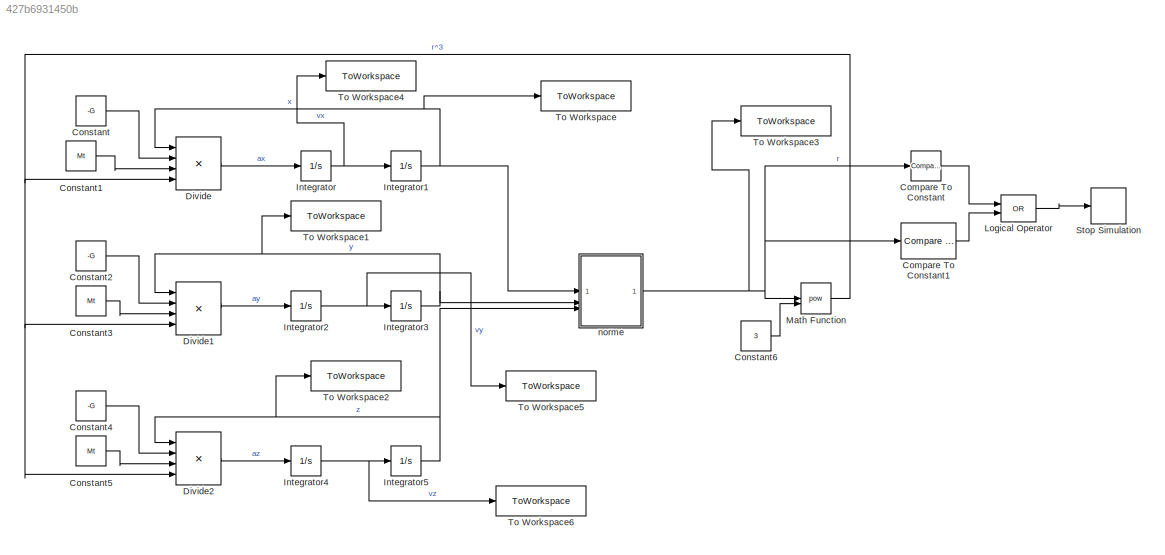
MODEL slx_427b6931450b
KIND model
CONFIG AbsTol = auto
CONFIG EnableMultiTasking = off
CONFIG FixedStep = 10
CONFIG MaxStep = auto
CONFIG MinStep = auto
CONFIG RelTol = 1e-3
CONFIG SampleTimeConstraint = Unconstrained
CONFIG SolverName = FixedStepAuto
CONFIG StartTime = 0.0
CONFIG StopTime = 1000000
BLOCK [Reference] Compare To Constant  REF=simulink/Logic and Bit
Operations/Compare
To Constant
  SourceBlock = simulink/Logic and Bit\nOperations/Compare\nTo Constant
  SourceType = Compare To Constant
BLOCK [Reference] Compare To Constant1  REF=simulink/Logic and Bit
Operations/Compare
To Constant
  SourceBlock = simulink/Logic and Bit\nOperations/Compare\nTo Constant
  SourceType = Compare To Constant
BLOCK [Constant] Constant
  Value = -G
BLOCK [Constant] Constant1
  Value = Mt
BLOCK [Constant] Constant2
  Value = -G
BLOCK [Constant] Constant3
  Value = Mt
BLOCK [Constant] Constant4
  Value = -G
BLOCK [Constant] Constant5
  Value = Mt
BLOCK [Constant] Constant6
  Value = 3
BLOCK [Product] Divide
  Inputs = ***/
BLOCK [Product] Divide1
  Inputs = ***/
BLOCK [Product] Divide2
  Inputs = ***/
BLOCK [Integrator] Integrator
  InitialCondition = v0*sind(theta)
BLOCK [Integrator] Integrator1
  InitialCondition = r*sind(phi)*cosd(theta)
BLOCK [Integrator] Integrator2
  InitialCondition = -v0*cosd(theta)
BLOCK [Integrator] Integrator3
  InitialCondition = r*sind(phi)*sind(theta)
BLOCK [Integrator] Integrator4
BLOCK [Integrator] Integrator5
  InitialCondition = r*cosd(phi)
BLOCK [Logic] Logical Operator
  AllPortsSameDT = off
  Operator = OR
  OutDataTypeStr = boolean
BLOCK [Math] Math Function
  Operator = pow
BLOCK [Stop] Stop Simulation
BLOCK [ToWorkspace] To Workspace
  FixptAsFi = on
  MaxDataPoints = inf
  SampleTime = -1
  SaveFormat = Timeseries
  VariableName = x
BLOCK [ToWorkspace] To Workspace1
  FixptAsFi = on
  MaxDataPoints = inf
  SampleTime = -1
  SaveFormat = Timeseries
  VariableName = y
BLOCK [ToWorkspace] To Workspace2
  FixptAsFi = on
  MaxDataPoints = inf
  SampleTime = -1
  SaveFormat = Timeseries
  VariableName = z
BLOCK [ToWorkspace] To Workspace3
  FixptAsFi = on
  MaxDataPoints = inf
  SampleTime = -1
  SaveFormat = Timeseries
  VariableName = r
BLOCK [ToWorkspace] To Workspace4
  FixptAsFi = on
  MaxDataPoints = inf
  SampleTime = -1
  SaveFormat = Timeseries
  VariableName = vx
BLOCK [ToWorkspace] To Workspace5
  FixptAsFi = on
  MaxDataPoints = inf
  SampleTime = -1
  SaveFormat = Timeseries
  VariableName = vy
BLOCK [ToWorkspace] To Workspace6
  FixptAsFi = on
  MaxDataPoints = inf
  SampleTime = -1
  SaveFormat = Timeseries
  VariableName = vz
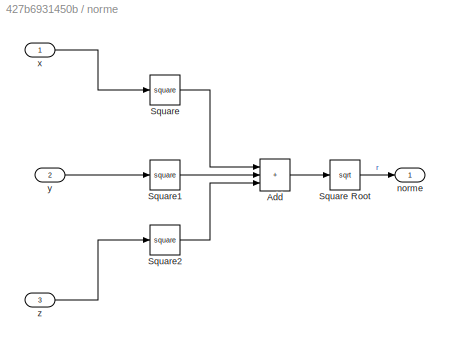
BLOCK [SubSystem] norme
BLOCK [Sum] norme/Add
  IconShape = rectangular
  Inputs = +++
BLOCK [Math] norme/Square
  Operator = square
BLOCK [Sqrt] norme/Square Root
BLOCK [Math] norme/Square1
  Operator = square
BLOCK [Math] norme/Square2
  Operator = square
BLOCK [Outport] norme/norme
BLOCK [Inport] norme/x
BLOCK [Inport] norme/y
  Port = 2
BLOCK [Inport] norme/z
  Port = 3
LINE Compare To Constant1:1 -> Logical Operator:2
LINE Compare To Constant:1 -> Logical Operator:1
LINE Constant1:1 -> Divide:3
LINE Constant2:1 -> Divide1:2
LINE Constant3:1 -> Divide1:3
LINE Constant4:1 -> Divide2:2
LINE Constant5:1 -> Divide2:3
LINE Constant6:1 -> Math Function:2
LINE Constant:1 -> Divide:2
LINE Divide1:1 -> Integrator2:1
LINE Divide2:1 -> Integrator4:1
LINE Divide:1 -> Integrator:1
NET Integrator1:1 -> Divide:1, To Workspace:1, norme:1
NET Integrator2:1 -> Integrator3:1, To Workspace5:1
NET Integrator3:1 -> Divide1:1, To Workspace1:1, norme:2
NET Integrator4:1 -> Integrator5:1, To Workspace6:1
NET Integrator5:1 -> Divide2:1, To Workspace2:1, norme:3
NET Integrator:1 -> Integrator1:1, To Workspace4:1
LINE Logical Operator:1 -> Stop Simulation:1
NET Math Function:1 -> Divide1:4, Divide2:4, Divide:4
LINE norme/Add:1 -> norme/Square Root:1
LINE norme/Square Root:1 -> norme/norme:1
LINE norme/Square1:1 -> norme/Add:2
LINE norme/Square2:1 -> norme/Add:3
LINE norme/Square:1 -> norme/Add:1
LINE norme/x:1 -> norme/Square:1
LINE norme/y:1 -> norme/Square1:1
LINE norme/z:1 -> norme/Square2:1
NET norme:1 -> Compare To Constant1:1, Compare To Constant:1, Math Function:1, To Workspace3:1
note: NET lines group one-source signal fan-out (src -> all destinations, sorted); 1:1 wires keep LINE
